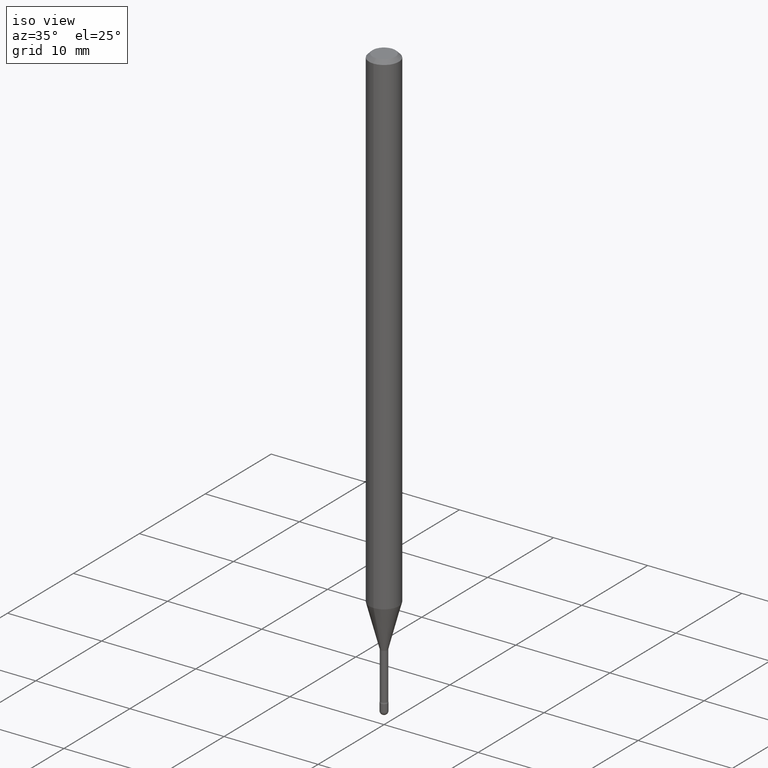
[diagram: clean part render]
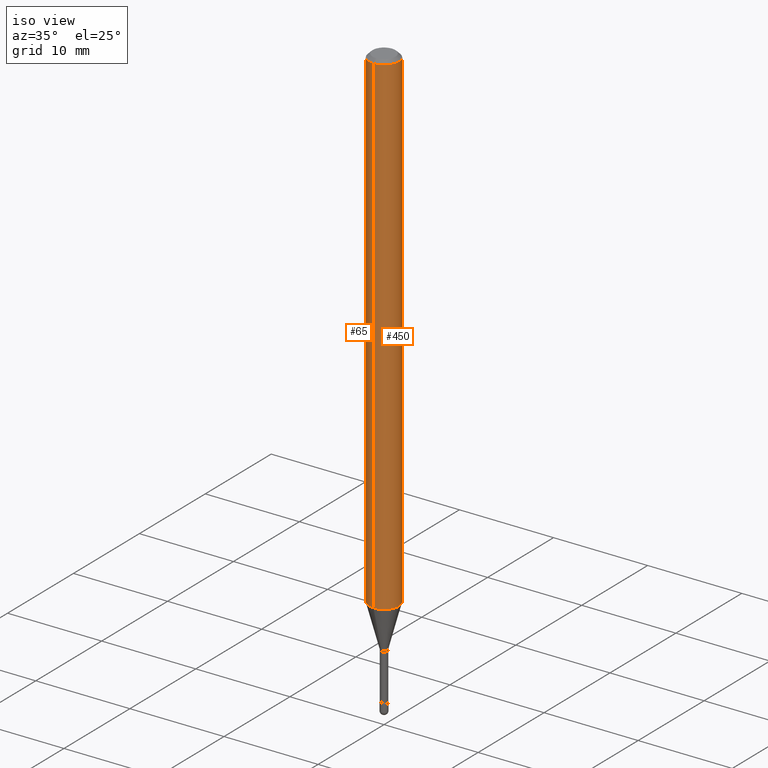
[diagram: same view with one multi-face feature highlighted, each face labeled with its STEP entity id]
A machine part, iso view. The highlighted faces form ONE feature: a constant-radius fillet chain: 2 tangent blend faces with common blend radius 1.5875 mm. The faces share edges in the B-rep.
Their STEP definitions:
[1] entity #65 (Cylinder):
#13 = ORIENTED_EDGE ( 'NONE', *, *, #145, .F. ) ;
#28 = CARTESIAN_POINT ( 'NONE',  ( -1.169113584055446105E-44, 1.669184350826100908E-30, 4.780733988912460139E-16 ) ) ;
#39 = LINE ( 'NONE', #389, #274 ) ;
#60 = LINE ( 'NONE', #487, #284 ) ;
#64 = DIRECTION ( 'NONE',  ( -2.445473815707476510E-29, 3.491474164922030519E-15, 1.000000000000000000 ) ) ;
#65 = ADVANCED_FACE ( 'NONE', ( #329 ), #498, .T. ) ;
#71 = VERTEX_POINT ( 'NONE', #282 ) ;
#111 = DIRECTION ( 'NONE',  ( -2.445473815707476510E-29, 3.491474164922030519E-15, 1.000000000000000000 ) ) ;
#114 = AXIS2_PLACEMENT_3D ( 'NONE', #213, #348, #518 ) ;
#126 = AXIS2_PLACEMENT_3D ( 'NONE', #28, #111, #244 ) ;
#145 = EDGE_CURVE ( 'NONE', #404, #464, #492, .T. ) ;
#151 = EDGE_LOOP ( 'NONE', ( #206, #285, #223, #13 ) ) ;
#206 = ORIENTED_EDGE ( 'NONE', *, *, #457, .F. ) ;
#207 = CARTESIAN_POINT ( 'NONE',  ( -4.364351673553912750E-16, -0.06250000000000005551, -0.01499999999999986587 ) ) ;
#213 = CARTESIAN_POINT ( 'NONE',  ( 5.069585003217296339E-29, -7.237994106466703788E-15, -2.073048163777072794 ) ) ;
#223 = ORIENTED_EDGE ( 'NONE', *, *, #440, .T. ) ;
#239 = EDGE_CURVE ( 'NONE', #366, #71, #560, .T. ) ;
#244 = DIRECTION ( 'NONE',  ( -6.982962677686265922E-15, -1.000000000000000000, 3.491474164922031308E-15 ) ) ;
#274 = VECTOR ( 'NONE', #525, 39.37007874015748143 ) ;
#282 = CARTESIAN_POINT ( 'NONE',  ( -4.364351673553409851E-16, -0.06250000000000724421, -2.073048163777072794 ) ) ;
#284 = VECTOR ( 'NONE', #64, 39.37007874015748143 ) ;
#285 = ORIENTED_EDGE ( 'NONE', *, *, #239, .T. ) ;
#294 = DIRECTION ( 'NONE',  ( -6.982962677686265922E-15, -1.000000000000000000, 3.483106191921935554E-15 ) ) ;
#301 = AXIS2_PLACEMENT_3D ( 'NONE', #565, #512, #294 ) ;
#304 = CARTESIAN_POINT ( 'NONE',  ( 4.440892098501135963E-16, 0.06249999999999995143, -0.01500000000000030129 ) ) ;
#329 = FACE_OUTER_BOUND ( 'NONE', #151, .T. ) ;
#348 = DIRECTION ( 'NONE',  ( -2.445473815707476510E-29, 3.491474164922030519E-15, 1.000000000000000000 ) ) ;
#350 = CARTESIAN_POINT ( 'NONE',  ( 4.440892098501131033E-16, 0.06249999999999274192, -2.073048163777073238 ) ) ;
#366 = VERTEX_POINT ( 'NONE', #350 ) ;
#389 = CARTESIAN_POINT ( 'NONE',  ( 4.440892098500625669E-16, 0.06250000000000000000, 2.598562635836191558E-16 ) ) ;
#404 = VERTEX_POINT ( 'NONE', #304 ) ;
#440 = EDGE_CURVE ( 'NONE', #71, #464, #60, .T. ) ;
#457 = EDGE_CURVE ( 'NONE', #366, #404, #39, .T. ) ;
#464 = VERTEX_POINT ( 'NONE', #207 ) ;
#487 = CARTESIAN_POINT ( 'NONE',  ( -4.364351673553916201E-16, -0.06250000000000000000, 6.962905341988730200E-16 ) ) ;
#492 = CIRCLE ( 'NONE', #301, 0.06250000000000000000 ) ;
#498 = CYLINDRICAL_SURFACE ( 'NONE', #126, 0.06250000000000000000 ) ;
#512 = DIRECTION ( 'NONE',  ( -2.445473815707476510E-29, 3.491474164922030519E-15, 1.000000000000000000 ) ) ;
#518 = DIRECTION ( 'NONE',  ( -6.982962677686265922E-15, -1.000000000000000000, 4.370956789862821150E-15 ) ) ;
#525 = DIRECTION ( 'NONE',  ( -2.445473815707476510E-29, 3.491474164922030519E-15, 1.000000000000000000 ) ) ;
#560 = CIRCLE ( 'NONE', #114, 0.06250000000000000000 ) ;
#565 = CARTESIAN_POINT ( 'NONE',  ( 3.668210723561235154E-31, -5.237211247383074400E-17, -0.01500000000000008271 ) ) ;
[2] entity #450 (Cylinder):
#8 = FACE_OUTER_BOUND ( 'NONE', #56, .T. ) ;
#21 = CIRCLE ( 'NONE', #228, 0.06250000000000000000 ) ;
#39 = LINE ( 'NONE', #389, #274 ) ;
#46 = DIRECTION ( 'NONE',  ( -6.982962677686265922E-15, -1.000000000000000000, 3.491474164922031308E-15 ) ) ;
#56 = EDGE_LOOP ( 'NONE', ( #140, #125, #76, #478 ) ) ;
#60 = LINE ( 'NONE', #487, #284 ) ;
#64 = DIRECTION ( 'NONE',  ( -2.445473815707476510E-29, 3.491474164922030519E-15, 1.000000000000000000 ) ) ;
#71 = VERTEX_POINT ( 'NONE', #282 ) ;
#76 = ORIENTED_EDGE ( 'NONE', *, *, #476, .F. ) ;
#83 = DIRECTION ( 'NONE',  ( -2.445473815707476510E-29, 3.491474164922030519E-15, 1.000000000000000000 ) ) ;
#87 = CARTESIAN_POINT ( 'NONE',  ( 3.668210723561235154E-31, -5.237211247383074400E-17, -0.01500000000000008271 ) ) ;
#125 = ORIENTED_EDGE ( 'NONE', *, *, #457, .T. ) ;
#140 = ORIENTED_EDGE ( 'NONE', *, *, #415, .T. ) ;
#169 = AXIS2_PLACEMENT_3D ( 'NONE', #87, #83, #344 ) ;
#207 = CARTESIAN_POINT ( 'NONE',  ( -4.364351673553912750E-16, -0.06250000000000005551, -0.01499999999999986587 ) ) ;
#212 = DIRECTION ( 'NONE',  ( -6.982962677686265922E-15, -1.000000000000000000, 4.370956789862821150E-15 ) ) ;
#228 = AXIS2_PLACEMENT_3D ( 'NONE', #509, #516, #212 ) ;
#260 = DIRECTION ( 'NONE',  ( -2.445473815707476510E-29, 3.491474164922030519E-15, 1.000000000000000000 ) ) ;
#274 = VECTOR ( 'NONE', #525, 39.37007874015748143 ) ;
#282 = CARTESIAN_POINT ( 'NONE',  ( -4.364351673553409851E-16, -0.06250000000000724421, -2.073048163777072794 ) ) ;
#284 = VECTOR ( 'NONE', #64, 39.37007874015748143 ) ;
#304 = CARTESIAN_POINT ( 'NONE',  ( 4.440892098501135963E-16, 0.06249999999999995143, -0.01500000000000030129 ) ) ;
#343 = AXIS2_PLACEMENT_3D ( 'NONE', #431, #260, #46 ) ;
#344 = DIRECTION ( 'NONE',  ( -6.982962677686265922E-15, -1.000000000000000000, 3.483106191921935554E-15 ) ) ;
#350 = CARTESIAN_POINT ( 'NONE',  ( 4.440892098501131033E-16, 0.06249999999999274192, -2.073048163777073238 ) ) ;
#366 = VERTEX_POINT ( 'NONE', #350 ) ;
#389 = CARTESIAN_POINT ( 'NONE',  ( 4.440892098500625669E-16, 0.06250000000000000000, 2.598562635836191558E-16 ) ) ;
#404 = VERTEX_POINT ( 'NONE', #304 ) ;
#410 = CIRCLE ( 'NONE', #169, 0.06250000000000000000 ) ;
#415 = EDGE_CURVE ( 'NONE', #71, #366, #21, .T. ) ;
#431 = CARTESIAN_POINT ( 'NONE',  ( -1.169113584055446105E-44, 1.669184350826100908E-30, 4.780733988912460139E-16 ) ) ;
#440 = EDGE_CURVE ( 'NONE', #71, #464, #60, .T. ) ;
#450 = ADVANCED_FACE ( 'NONE', ( #8 ), #452, .T. ) ;
#452 = CYLINDRICAL_SURFACE ( 'NONE', #343, 0.06250000000000000000 ) ;
#457 = EDGE_CURVE ( 'NONE', #366, #404, #39, .T. ) ;
#464 = VERTEX_POINT ( 'NONE', #207 ) ;
#476 = EDGE_CURVE ( 'NONE', #464, #404, #410, .T. ) ;
#478 = ORIENTED_EDGE ( 'NONE', *, *, #440, .F. ) ;
#487 = CARTESIAN_POINT ( 'NONE',  ( -4.364351673553916201E-16, -0.06250000000000000000, 6.962905341988730200E-16 ) ) ;
#509 = CARTESIAN_POINT ( 'NONE',  ( 5.069585003217296339E-29, -7.237994106466703788E-15, -2.073048163777072794 ) ) ;
#516 = DIRECTION ( 'NONE',  ( -2.445473815707476510E-29, 3.491474164922030519E-15, 1.000000000000000000 ) ) ;
#525 = DIRECTION ( 'NONE',  ( -2.445473815707476510E-29, 3.491474164922030519E-15, 1.000000000000000000 ) ) ;